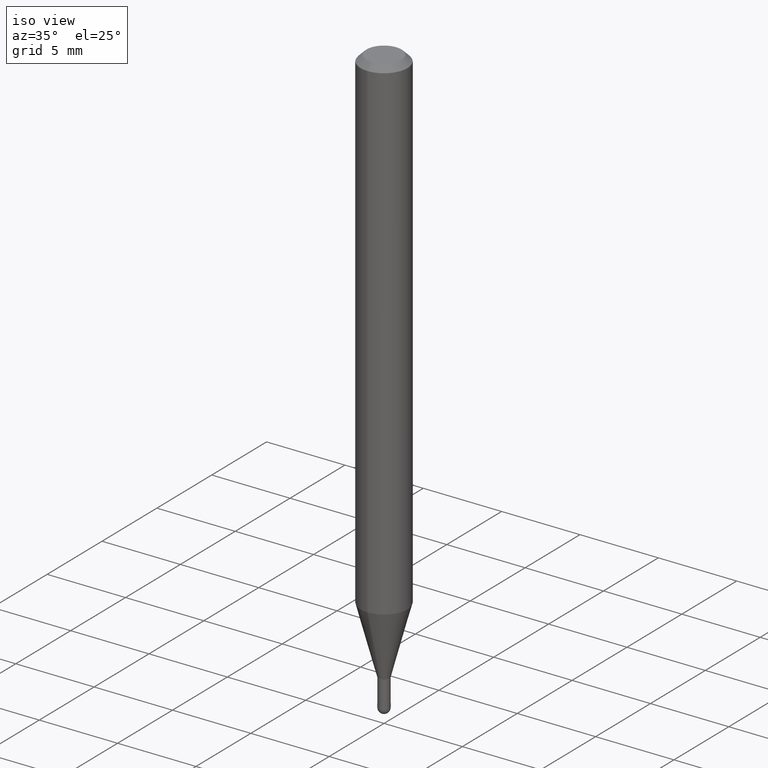
[diagram: clean part render]
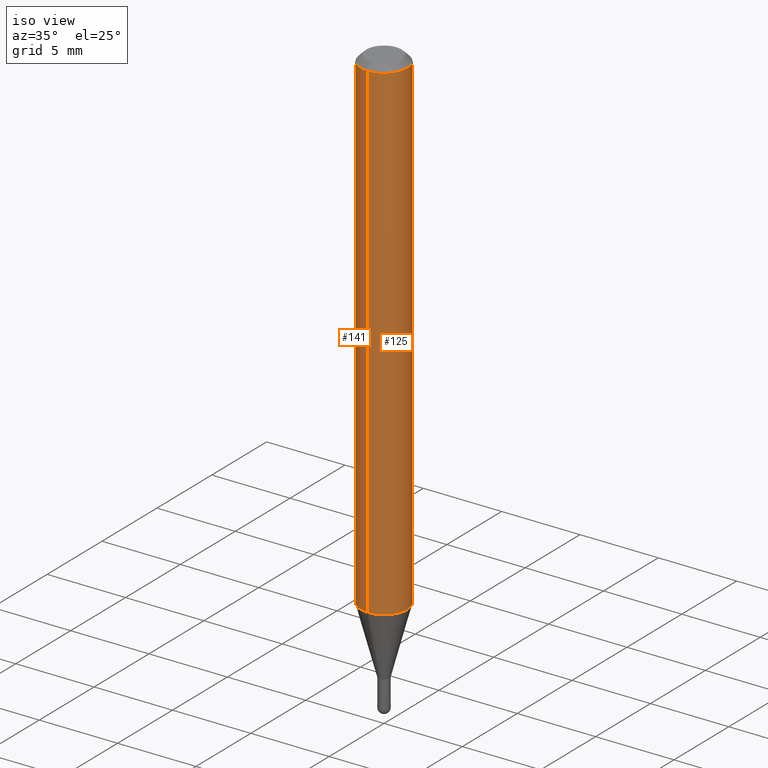
[diagram: same view with one multi-face feature highlighted, each face labeled with its STEP entity id]
A machine part, iso view. The highlighted faces form ONE feature: a constant-radius fillet chain: 2 tangent blend faces with common blend radius 1.4999 mm. The faces share edges in the B-rep.
Their STEP definitions:
[1] entity #125 (Cylinder):
#4 = VERTEX_POINT ( 'NONE', #184 ) ;
#33 = VECTOR ( 'NONE', #249, 39.37007874015748143 ) ;
#41 = AXIS2_PLACEMENT_3D ( 'NONE', #354, #198, #304 ) ;
#50 = EDGE_LOOP ( 'NONE', ( #409, #223, #312, #109 ) ) ;
#59 = VECTOR ( 'NONE', #97, 39.37007874015748143 ) ;
#61 = EDGE_CURVE ( 'NONE', #271, #510, #307, .T. ) ;
#97 = DIRECTION ( 'NONE',  ( -2.445466752382438312E-29, 3.491484280005505565E-15, 1.000000000000000000 ) ) ;
#109 = ORIENTED_EDGE ( 'NONE', *, *, #153, .F. ) ;
#125 = ADVANCED_FACE ( 'NONE', ( #200 ), #251, .T. ) ;
#136 = DIRECTION ( 'NONE',  ( -2.445466752382438032E-29, 3.491484280005505170E-15, 1.000000000000000000 ) ) ;
#153 = EDGE_CURVE ( 'NONE', #158, #271, #245, .T. ) ;
#158 = VERTEX_POINT ( 'NONE', #477 ) ;
#172 = CARTESIAN_POINT ( 'NONE',  ( -4.123439461173736383E-16, -0.05905000000000005383, -0.01499999999999987454 ) ) ;
#184 = CARTESIAN_POINT ( 'NONE',  ( 4.195754854663694204E-16, 0.05904999999999564764, -1.244224700957513807 ) ) ;
#198 = DIRECTION ( 'NONE',  ( -2.445466752382438032E-29, 3.491484280005505170E-15, 1.000000000000000000 ) ) ;
#200 = FACE_OUTER_BOUND ( 'NONE', #50, .T. ) ;
#218 = CARTESIAN_POINT ( 'NONE',  ( 4.195754854663390985E-16, 0.05904999999999999832, -2.061721467343250858E-16 ) ) ;
#223 = ORIENTED_EDGE ( 'NONE', *, *, #306, .T. ) ;
#230 = CIRCLE ( 'NONE', #505, 0.05904999999999999832 ) ;
#245 = LINE ( 'NONE', #489, #33 ) ;
#249 = DIRECTION ( 'NONE',  ( -2.445466752382438312E-29, 3.491484280005505565E-15, 1.000000000000000000 ) ) ;
#250 = AXIS2_PLACEMENT_3D ( 'NONE', #275, #317, #401 ) ;
#251 = CYLINDRICAL_SURFACE ( 'NONE', #250, 0.05904999999999999832 ) ;
#253 = DIRECTION ( 'NONE',  ( -6.982962677686265922E-15, -1.000000000000000000, 4.626330217890369336E-15 ) ) ;
#258 = LINE ( 'NONE', #218, #59 ) ;
#271 = VERTEX_POINT ( 'NONE', #172 ) ;
#275 = CARTESIAN_POINT ( 'NONE',  ( 0.000000000000000000, 0.000000000000000000, 0.000000000000000000 ) ) ;
#294 = CARTESIAN_POINT ( 'NONE',  ( 3.042710138684580835E-29, -4.344190984187709840E-15, -1.244224700957513585 ) ) ;
#304 = DIRECTION ( 'NONE',  ( -6.982962677686265922E-15, -1.000000000000000000, 3.505890868245046092E-15 ) ) ;
#306 = EDGE_CURVE ( 'NONE', #4, #510, #258, .T. ) ;
#307 = CIRCLE ( 'NONE', #41, 0.05904999999999999832 ) ;
#312 = ORIENTED_EDGE ( 'NONE', *, *, #61, .F. ) ;
#317 = DIRECTION ( 'NONE',  ( -2.445466752382438032E-29, 3.491484280005505170E-15, 1.000000000000000000 ) ) ;
#354 = CARTESIAN_POINT ( 'NONE',  ( 3.668200128573676386E-31, -5.237226420008286401E-17, -0.01500000000000008098 ) ) ;
#401 = DIRECTION ( 'NONE',  ( -6.982962677686265922E-15, -1.000000000000000000, 3.491484280005505170E-15 ) ) ;
#409 = ORIENTED_EDGE ( 'NONE', *, *, #507, .T. ) ;
#417 = CARTESIAN_POINT ( 'NONE',  ( 4.195754854663697655E-16, 0.05904999999999994975, -0.01500000000000028741 ) ) ;
#477 = CARTESIAN_POINT ( 'NONE',  ( -4.123439461173436122E-16, -0.05905000000000434207, -1.244224700957513363 ) ) ;
#489 = CARTESIAN_POINT ( 'NONE',  ( -4.123439461173739834E-16, -0.05904999999999999832, 2.061721467343250858E-16 ) ) ;
#505 = AXIS2_PLACEMENT_3D ( 'NONE', #294, #136, #253 ) ;
#507 = EDGE_CURVE ( 'NONE', #158, #4, #230, .T. ) ;
#510 = VERTEX_POINT ( 'NONE', #417 ) ;
[2] entity #141 (Cylinder):
#3 = AXIS2_PLACEMENT_3D ( 'NONE', #355, #470, #110 ) ;
#4 = VERTEX_POINT ( 'NONE', #184 ) ;
#11 = DIRECTION ( 'NONE',  ( -6.982962677686265922E-15, -1.000000000000000000, 3.505890868245046092E-15 ) ) ;
#33 = VECTOR ( 'NONE', #249, 39.37007874015748143 ) ;
#49 = DIRECTION ( 'NONE',  ( -2.445466752382438032E-29, 3.491484280005505170E-15, 1.000000000000000000 ) ) ;
#59 = VECTOR ( 'NONE', #97, 39.37007874015748143 ) ;
#80 = ORIENTED_EDGE ( 'NONE', *, *, #265, .F. ) ;
#95 = EDGE_CURVE ( 'NONE', #4, #158, #434, .T. ) ;
#97 = DIRECTION ( 'NONE',  ( -2.445466752382438312E-29, 3.491484280005505565E-15, 1.000000000000000000 ) ) ;
#110 = DIRECTION ( 'NONE',  ( -6.982962677686265922E-15, -1.000000000000000000, 4.626330217890369336E-15 ) ) ;
#138 = CIRCLE ( 'NONE', #220, 0.05904999999999999832 ) ;
#141 = ADVANCED_FACE ( 'NONE', ( #165 ), #175, .T. ) ;
#153 = EDGE_CURVE ( 'NONE', #158, #271, #245, .T. ) ;
#158 = VERTEX_POINT ( 'NONE', #477 ) ;
#165 = FACE_OUTER_BOUND ( 'NONE', #267, .T. ) ;
#172 = CARTESIAN_POINT ( 'NONE',  ( -4.123439461173736383E-16, -0.05905000000000005383, -0.01499999999999987454 ) ) ;
#175 = CYLINDRICAL_SURFACE ( 'NONE', #485, 0.05904999999999999832 ) ;
#184 = CARTESIAN_POINT ( 'NONE',  ( 4.195754854663694204E-16, 0.05904999999999564764, -1.244224700957513807 ) ) ;
#193 = ORIENTED_EDGE ( 'NONE', *, *, #153, .T. ) ;
#218 = CARTESIAN_POINT ( 'NONE',  ( 4.195754854663390985E-16, 0.05904999999999999832, -2.061721467343250858E-16 ) ) ;
#220 = AXIS2_PLACEMENT_3D ( 'NONE', #408, #49, #11 ) ;
#245 = LINE ( 'NONE', #489, #33 ) ;
#249 = DIRECTION ( 'NONE',  ( -2.445466752382438312E-29, 3.491484280005505565E-15, 1.000000000000000000 ) ) ;
#258 = LINE ( 'NONE', #218, #59 ) ;
#265 = EDGE_CURVE ( 'NONE', #510, #271, #138, .T. ) ;
#267 = EDGE_LOOP ( 'NONE', ( #323, #269, #193, #80 ) ) ;
#269 = ORIENTED_EDGE ( 'NONE', *, *, #95, .T. ) ;
#271 = VERTEX_POINT ( 'NONE', #172 ) ;
#290 = DIRECTION ( 'NONE',  ( -6.982962677686265922E-15, -1.000000000000000000, 3.491484280005505170E-15 ) ) ;
#306 = EDGE_CURVE ( 'NONE', #4, #510, #258, .T. ) ;
#323 = ORIENTED_EDGE ( 'NONE', *, *, #306, .F. ) ;
#355 = CARTESIAN_POINT ( 'NONE',  ( 3.042710138684580835E-29, -4.344190984187709840E-15, -1.244224700957513585 ) ) ;
#360 = CARTESIAN_POINT ( 'NONE',  ( 0.000000000000000000, 0.000000000000000000, 0.000000000000000000 ) ) ;
#408 = CARTESIAN_POINT ( 'NONE',  ( 3.668200128573676386E-31, -5.237226420008286401E-17, -0.01500000000000008098 ) ) ;
#417 = CARTESIAN_POINT ( 'NONE',  ( 4.195754854663697655E-16, 0.05904999999999994975, -0.01500000000000028741 ) ) ;
#434 = CIRCLE ( 'NONE', #3, 0.05904999999999999832 ) ;
#449 = DIRECTION ( 'NONE',  ( -2.445466752382438032E-29, 3.491484280005505170E-15, 1.000000000000000000 ) ) ;
#470 = DIRECTION ( 'NONE',  ( -2.445466752382438032E-29, 3.491484280005505170E-15, 1.000000000000000000 ) ) ;
#477 = CARTESIAN_POINT ( 'NONE',  ( -4.123439461173436122E-16, -0.05905000000000434207, -1.244224700957513363 ) ) ;
#485 = AXIS2_PLACEMENT_3D ( 'NONE', #360, #449, #290 ) ;
#489 = CARTESIAN_POINT ( 'NONE',  ( -4.123439461173739834E-16, -0.05904999999999999832, 2.061721467343250858E-16 ) ) ;
#510 = VERTEX_POINT ( 'NONE', #417 ) ;